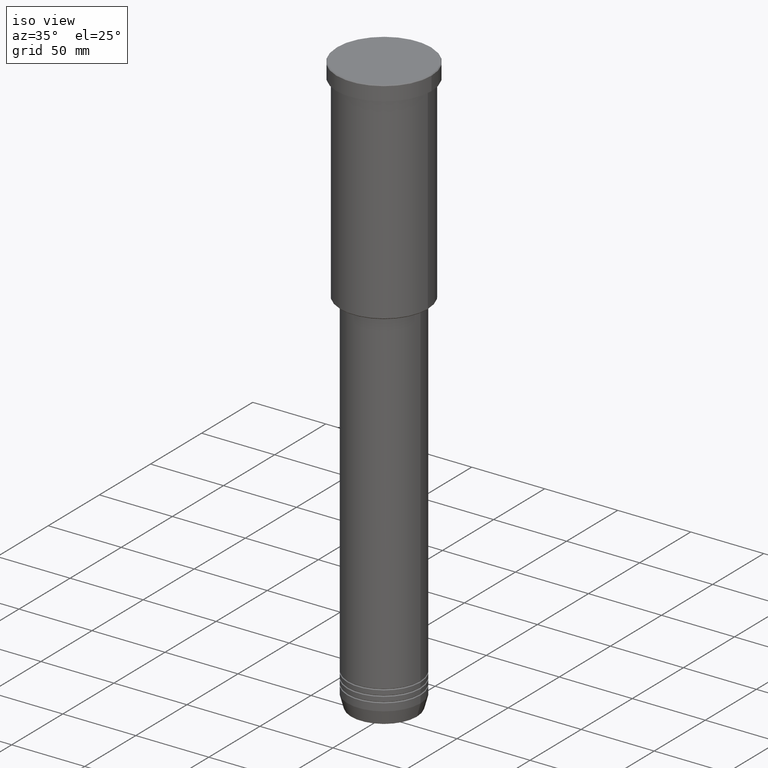
[diagram: clean part render]
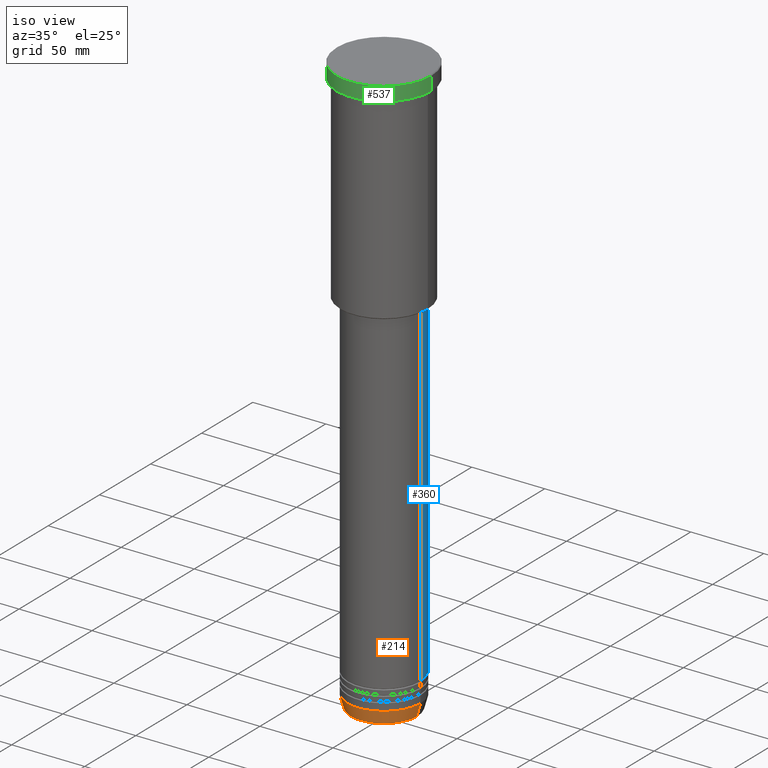
[diagram: same view with three faces highlighted in distinct colors, each labeled with its STEP entity id]
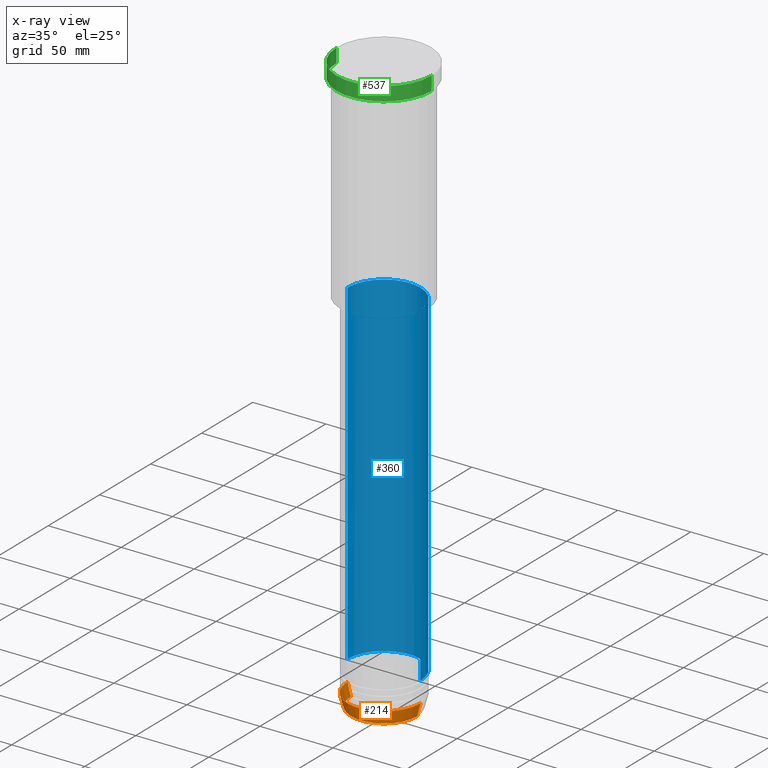
[diagram: x-ray of the same camera — body ghosted, the three highlighted faces saturated]
A machine part, iso view with three faces highlighted in distinct colors.
The next image is the same camera in x-ray (body ghosted, the three faces saturated) — at least one of them is partly hidden behind the body in this view.
Their STEP definitions:

[orange] entity #214 — the highlighted conical surface has half-angle 15 deg.
#121 = CARTESIAN_POINT ( 'NONE',  ( 0.000000000000000000, 0.000000000000000000, -391.0000000000000000 ) ) ;
#122 = DIRECTION ( 'NONE',  ( -0.000000000000000000, -0.000000000000000000, 1.000000000000000000 ) ) ;
#147 = ORIENTED_EDGE ( 'NONE', *, *, #192, .F. ) ;
#192 = EDGE_CURVE ( 'NONE', #1148, #1103, #996, .T. ) ;
#214 = ADVANCED_FACE ( 'NONE', ( #216 ), #576, .T. ) ;
#216 = FACE_OUTER_BOUND ( 'NONE', #340, .T. ) ;
#217 = DIRECTION ( 'NONE',  ( 1.000000000000000000, 0.000000000000000000, 0.000000000000000000 ) ) ;
#293 = CARTESIAN_POINT ( 'NONE',  ( 0.000000000000000000, 0.000000000000000000, -391.0000000000000000 ) ) ;
#338 = EDGE_CURVE ( 'NONE', #776, #1103, #711, .T. ) ;
#340 = EDGE_LOOP ( 'NONE', ( #442, #419, #1115, #147 ) ) ;
#375 = AXIS2_PLACEMENT_3D ( 'NONE', #293, #1104, #658 ) ;
#414 = CARTESIAN_POINT ( 'NONE',  ( -22.68775668727494477, 2.920032929279452581E-15, -399.6294095225512706 ) ) ;
#417 = AXIS2_PLACEMENT_3D ( 'NONE', #1022, #122, #217 ) ;
#419 = ORIENTED_EDGE ( 'NONE', *, *, #761, .T. ) ;
#442 = ORIENTED_EDGE ( 'NONE', *, *, #451, .F. ) ;
#451 = EDGE_CURVE ( 'NONE', #787, #1148, #1155, .T. ) ;
#458 = CIRCLE ( 'NONE', #417, 22.68775668727494477 ) ;
#480 = CARTESIAN_POINT ( 'NONE',  ( -25.00000000000000000, 3.061616997868383043E-15, -391.0000000000000000 ) ) ;
#483 = AXIS2_PLACEMENT_3D ( 'NONE', #121, #1018, #946 ) ;
#576 = CONICAL_SURFACE ( 'NONE', #375, 25.00000000000000000, 0.2617993877991502960 ) ;
#625 = DIRECTION ( 'NONE',  ( 0.2588190451025215166, 0.000000000000000000, 0.9659258262890679791 ) ) ;
#658 = DIRECTION ( 'NONE',  ( 1.000000000000000000, 0.000000000000000000, 0.000000000000000000 ) ) ;
#682 = CARTESIAN_POINT ( 'NONE',  ( -25.00000000000000000, 3.061616997868383043E-15, -391.0000000000000000 ) ) ;
#711 = LINE ( 'NONE', #1070, #871 ) ;
#761 = EDGE_CURVE ( 'NONE', #787, #776, #458, .T. ) ;
#776 = VERTEX_POINT ( 'NONE', #947 ) ;
#787 = VERTEX_POINT ( 'NONE', #414 ) ;
#871 = VECTOR ( 'NONE', #625, 1000.000000000000114 ) ;
#946 = DIRECTION ( 'NONE',  ( 1.000000000000000000, 0.000000000000000000, 0.000000000000000000 ) ) ;
#947 = CARTESIAN_POINT ( 'NONE',  ( 22.68775668727494477, 0.000000000000000000, -399.6294095225512706 ) ) ;
#996 = CIRCLE ( 'NONE', #483, 25.00000000000000000 ) ;
#1003 = CARTESIAN_POINT ( 'NONE',  ( 25.00000000000000000, 0.000000000000000000, -391.0000000000000000 ) ) ;
#1018 = DIRECTION ( 'NONE',  ( -0.000000000000000000, -0.000000000000000000, 1.000000000000000000 ) ) ;
#1022 = CARTESIAN_POINT ( 'NONE',  ( 0.000000000000000000, 0.000000000000000000, -399.6294095225512706 ) ) ;
#1040 = DIRECTION ( 'NONE',  ( -0.2588190451025215166, 3.169619151431774802E-17, 0.9659258262890679791 ) ) ;
#1064 = VECTOR ( 'NONE', #1040, 1000.000000000000114 ) ;
#1070 = CARTESIAN_POINT ( 'NONE',  ( 25.00000000000000000, 0.000000000000000000, -391.0000000000000000 ) ) ;
#1103 = VERTEX_POINT ( 'NONE', #1003 ) ;
#1104 = DIRECTION ( 'NONE',  ( -0.000000000000000000, -0.000000000000000000, 1.000000000000000000 ) ) ;
#1115 = ORIENTED_EDGE ( 'NONE', *, *, #338, .T. ) ;
#1148 = VERTEX_POINT ( 'NONE', #480 ) ;
#1155 = LINE ( 'NONE', #682, #1064 ) ;

[blue] entity #360 — the highlighted cylindrical surface (partial cylindrical patch) has radius 25 mm, axis along (-0, -0, 1).
#11 = AXIS2_PLACEMENT_3D ( 'NONE', #327, #46, #241 ) ;
#16 = EDGE_CURVE ( 'NONE', #273, #692, #199, .T. ) ;
#46 = DIRECTION ( 'NONE',  ( -0.000000000000000000, -0.000000000000000000, 1.000000000000000000 ) ) ;
#55 = FACE_OUTER_BOUND ( 'NONE', #589, .T. ) ;
#199 = CIRCLE ( 'NONE', #698, 25.00000000000000000 ) ;
#204 = VERTEX_POINT ( 'NONE', #590 ) ;
#209 = CARTESIAN_POINT ( 'NONE',  ( -25.00000000000000000, 3.061616997868383437E-15, -377.0000000000000000 ) ) ;
#213 = CARTESIAN_POINT ( 'NONE',  ( -25.00000000000000355, 3.061616997868383437E-15, 0.000000000000000000 ) ) ;
#241 = DIRECTION ( 'NONE',  ( 1.000000000000000000, 0.000000000000000000, 0.000000000000000000 ) ) ;
#249 = ORIENTED_EDGE ( 'NONE', *, *, #584, .F. ) ;
#273 = VERTEX_POINT ( 'NONE', #803 ) ;
#275 = ORIENTED_EDGE ( 'NONE', *, *, #596, .F. ) ;
#305 = LINE ( 'NONE', #213, #396 ) ;
#317 = CYLINDRICAL_SURFACE ( 'NONE', #11, 25.00000000000000355 ) ;
#327 = CARTESIAN_POINT ( 'NONE',  ( 0.000000000000000000, 0.000000000000000000, 0.000000000000000000 ) ) ;
#329 = ORIENTED_EDGE ( 'NONE', *, *, #16, .T. ) ;
#360 = ADVANCED_FACE ( 'NONE', ( #55 ), #317, .T. ) ;
#396 = VECTOR ( 'NONE', #1114, 1000.000000000000000 ) ;
#456 = LINE ( 'NONE', #818, #817 ) ;
#462 = CARTESIAN_POINT ( 'NONE',  ( 0.000000000000000000, 0.000000000000000000, -146.9999999999999147 ) ) ;
#564 = DIRECTION ( 'NONE',  ( -0.000000000000000000, -0.000000000000000000, 1.000000000000000000 ) ) ;
#584 = EDGE_CURVE ( 'NONE', #273, #1125, #456, .T. ) ;
#589 = EDGE_LOOP ( 'NONE', ( #329, #961, #275, #249 ) ) ;
#590 = CARTESIAN_POINT ( 'NONE',  ( -25.00000000000001066, 3.061616997868384226E-15, -146.9999999999999147 ) ) ;
#596 = EDGE_CURVE ( 'NONE', #1125, #204, #971, .T. ) ;
#651 = DIRECTION ( 'NONE',  ( -0.000000000000000000, -0.000000000000000000, 1.000000000000000000 ) ) ;
#679 = EDGE_CURVE ( 'NONE', #692, #204, #305, .T. ) ;
#692 = VERTEX_POINT ( 'NONE', #209 ) ;
#698 = AXIS2_PLACEMENT_3D ( 'NONE', #907, #564, #1097 ) ;
#727 = DIRECTION ( 'NONE',  ( 1.000000000000000000, 0.000000000000000000, 0.000000000000000000 ) ) ;
#803 = CARTESIAN_POINT ( 'NONE',  ( 25.00000000000000000, 0.000000000000000000, -377.0000000000000000 ) ) ;
#817 = VECTOR ( 'NONE', #651, 1000.000000000000000 ) ;
#818 = CARTESIAN_POINT ( 'NONE',  ( 25.00000000000000355, 0.000000000000000000, 0.000000000000000000 ) ) ;
#837 = CARTESIAN_POINT ( 'NONE',  ( 25.00000000000000711, 0.000000000000000000, -146.9999999999999147 ) ) ;
#907 = CARTESIAN_POINT ( 'NONE',  ( 0.000000000000000000, 0.000000000000000000, -377.0000000000000000 ) ) ;
#932 = AXIS2_PLACEMENT_3D ( 'NONE', #462, #1012, #727 ) ;
#961 = ORIENTED_EDGE ( 'NONE', *, *, #679, .T. ) ;
#971 = CIRCLE ( 'NONE', #932, 25.00000000000000711 ) ;
#1012 = DIRECTION ( 'NONE',  ( -0.000000000000000000, -0.000000000000000000, 1.000000000000000000 ) ) ;
#1097 = DIRECTION ( 'NONE',  ( 1.000000000000000000, 0.000000000000000000, 0.000000000000000000 ) ) ;
#1114 = DIRECTION ( 'NONE',  ( -0.000000000000000000, -0.000000000000000000, 1.000000000000000000 ) ) ;
#1125 = VERTEX_POINT ( 'NONE', #837 ) ;

[green] entity #537 — the highlighted cylindrical surface (partial cylindrical patch) has radius 32.5 mm, axis along (-0, -0, 1).
#109 = AXIS2_PLACEMENT_3D ( 'NONE', #309, #1033, #1050 ) ;
#113 = FACE_OUTER_BOUND ( 'NONE', #985, .T. ) ;
#215 = ORIENTED_EDGE ( 'NONE', *, *, #1121, .T. ) ;
#251 = VERTEX_POINT ( 'NONE', #439 ) ;
#254 = ORIENTED_EDGE ( 'NONE', *, *, #403, .T. ) ;
#270 = CARTESIAN_POINT ( 'NONE',  ( 0.000000000000000000, 0.000000000000000000, -9.999999999999992895 ) ) ;
#308 = CARTESIAN_POINT ( 'NONE',  ( 32.50000000000000000, 0.000000000000000000, -0.4999999999999726885 ) ) ;
#309 = CARTESIAN_POINT ( 'NONE',  ( 0.000000000000000000, 0.000000000000000000, -0.4999999999999726885 ) ) ;
#310 = DIRECTION ( 'NONE',  ( -0.000000000000000000, -0.000000000000000000, 1.000000000000000000 ) ) ;
#363 = CARTESIAN_POINT ( 'NONE',  ( -32.50000000000000000, 3.980102097228898626E-15, -9.999999999999992895 ) ) ;
#373 = CIRCLE ( 'NONE', #1042, 32.50000000000000000 ) ;
#403 = EDGE_CURVE ( 'NONE', #251, #879, #406, .T. ) ;
#406 = LINE ( 'NONE', #785, #635 ) ;
#436 = AXIS2_PLACEMENT_3D ( 'NONE', #736, #1102, #1089 ) ;
#439 = CARTESIAN_POINT ( 'NONE',  ( 32.50000000000000000, 0.000000000000000000, -9.999999999999992895 ) ) ;
#499 = CIRCLE ( 'NONE', #109, 32.50000000000000000 ) ;
#513 = VERTEX_POINT ( 'NONE', #363 ) ;
#537 = ADVANCED_FACE ( 'NONE', ( #113 ), #924, .T. ) ;
#587 = LINE ( 'NONE', #954, #722 ) ;
#619 = ORIENTED_EDGE ( 'NONE', *, *, #781, .F. ) ;
#635 = VECTOR ( 'NONE', #764, 1000.000000000000000 ) ;
#666 = EDGE_CURVE ( 'NONE', #879, #704, #499, .T. ) ;
#689 = ORIENTED_EDGE ( 'NONE', *, *, #666, .T. ) ;
#690 = CARTESIAN_POINT ( 'NONE',  ( -32.50000000000000000, 3.980102097228898626E-15, -0.4999999999999726885 ) ) ;
#704 = VERTEX_POINT ( 'NONE', #690 ) ;
#722 = VECTOR ( 'NONE', #310, 1000.000000000000000 ) ;
#731 = DIRECTION ( 'NONE',  ( -0.000000000000000000, -0.000000000000000000, 1.000000000000000000 ) ) ;
#736 = CARTESIAN_POINT ( 'NONE',  ( 0.000000000000000000, 0.000000000000000000, 0.000000000000000000 ) ) ;
#764 = DIRECTION ( 'NONE',  ( -0.000000000000000000, -0.000000000000000000, 1.000000000000000000 ) ) ;
#781 = EDGE_CURVE ( 'NONE', #513, #704, #587, .T. ) ;
#785 = CARTESIAN_POINT ( 'NONE',  ( 32.50000000000000000, 0.000000000000000000, 0.000000000000000000 ) ) ;
#879 = VERTEX_POINT ( 'NONE', #308 ) ;
#920 = DIRECTION ( 'NONE',  ( 1.000000000000000000, 0.000000000000000000, 0.000000000000000000 ) ) ;
#924 = CYLINDRICAL_SURFACE ( 'NONE', #436, 32.50000000000000000 ) ;
#954 = CARTESIAN_POINT ( 'NONE',  ( -32.50000000000000000, 3.980102097228898626E-15, 0.000000000000000000 ) ) ;
#985 = EDGE_LOOP ( 'NONE', ( #619, #215, #254, #689 ) ) ;
#1033 = DIRECTION ( 'NONE',  ( 0.000000000000000000, 0.000000000000000000, -1.000000000000000000 ) ) ;
#1042 = AXIS2_PLACEMENT_3D ( 'NONE', #270, #731, #920 ) ;
#1050 = DIRECTION ( 'NONE',  ( 1.000000000000000000, 0.000000000000000000, 0.000000000000000000 ) ) ;
#1089 = DIRECTION ( 'NONE',  ( 1.000000000000000000, 0.000000000000000000, 0.000000000000000000 ) ) ;
#1102 = DIRECTION ( 'NONE',  ( -0.000000000000000000, -0.000000000000000000, 1.000000000000000000 ) ) ;
#1121 = EDGE_CURVE ( 'NONE', #513, #251, #373, .T. ) ;